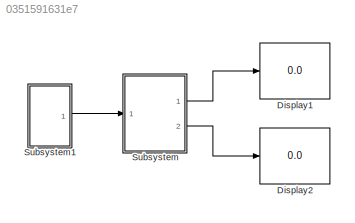
MODEL slx_0351591631e7
KIND model
CONFIG AbsTol = auto
CONFIG EnableMultiTasking = off
CONFIG FixedStep = auto
CONFIG MaxStep = auto
CONFIG MinStep = auto
CONFIG RelTol = 1e-3
CONFIG SampleTimeConstraint = Unconstrained
CONFIG Solver = VariableStepAuto
CONFIG SolverName = VariableStepAuto
CONFIG StartTime = 0.0
CONFIG StopTime = 10.0
BLOCK [Display] Display1
  Decimation = 1
  Ports = [1]
BLOCK [Display] Display2
  Decimation = 1
  Ports = [1]
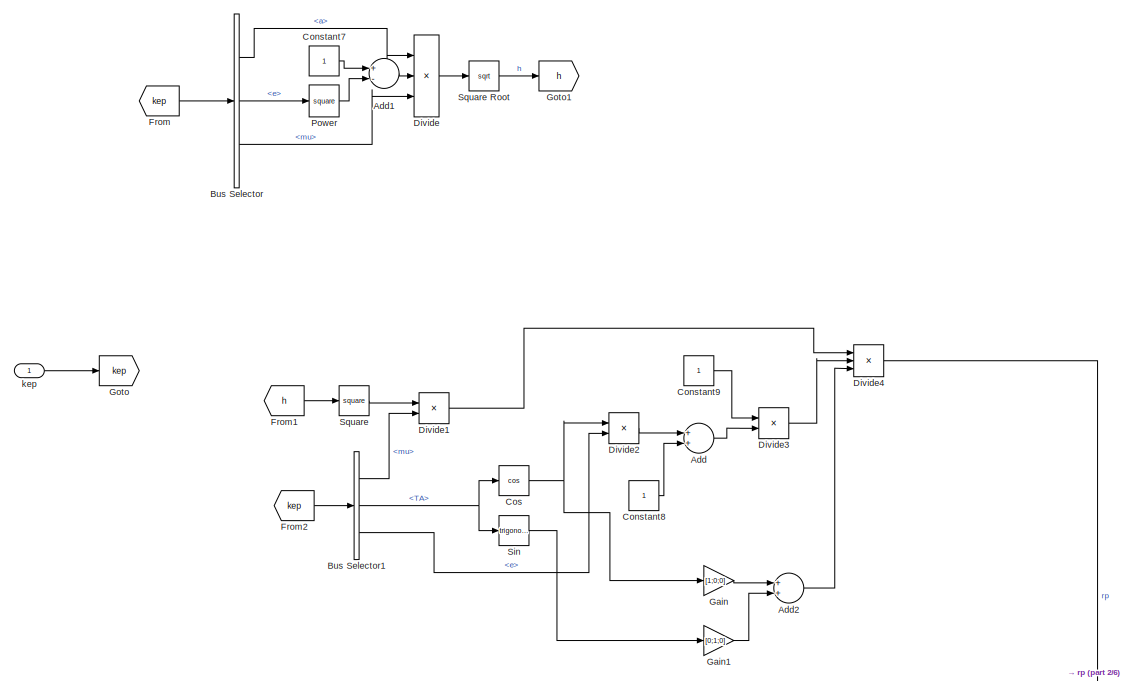
[diagram: Subsystem - part 1/6, top left region]
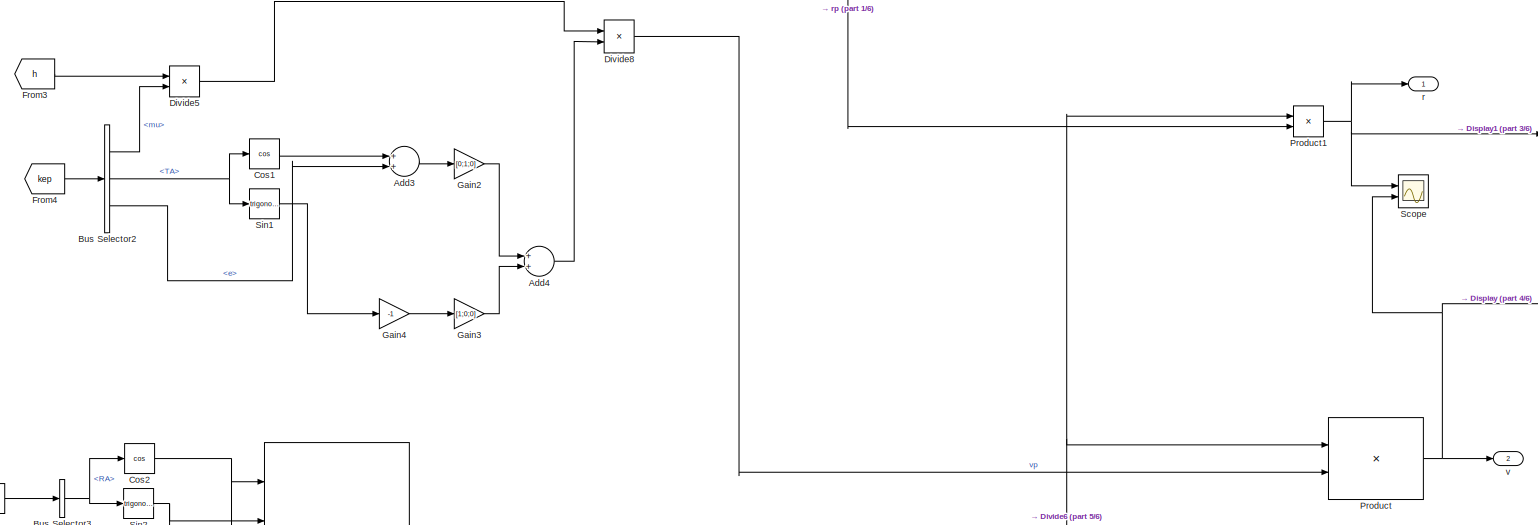
[diagram: Subsystem - part 2/6, full width, middle band]
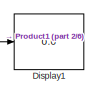
[diagram: Subsystem - part 3/6, top right region]
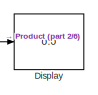
[diagram: Subsystem - part 4/6, middle right region]
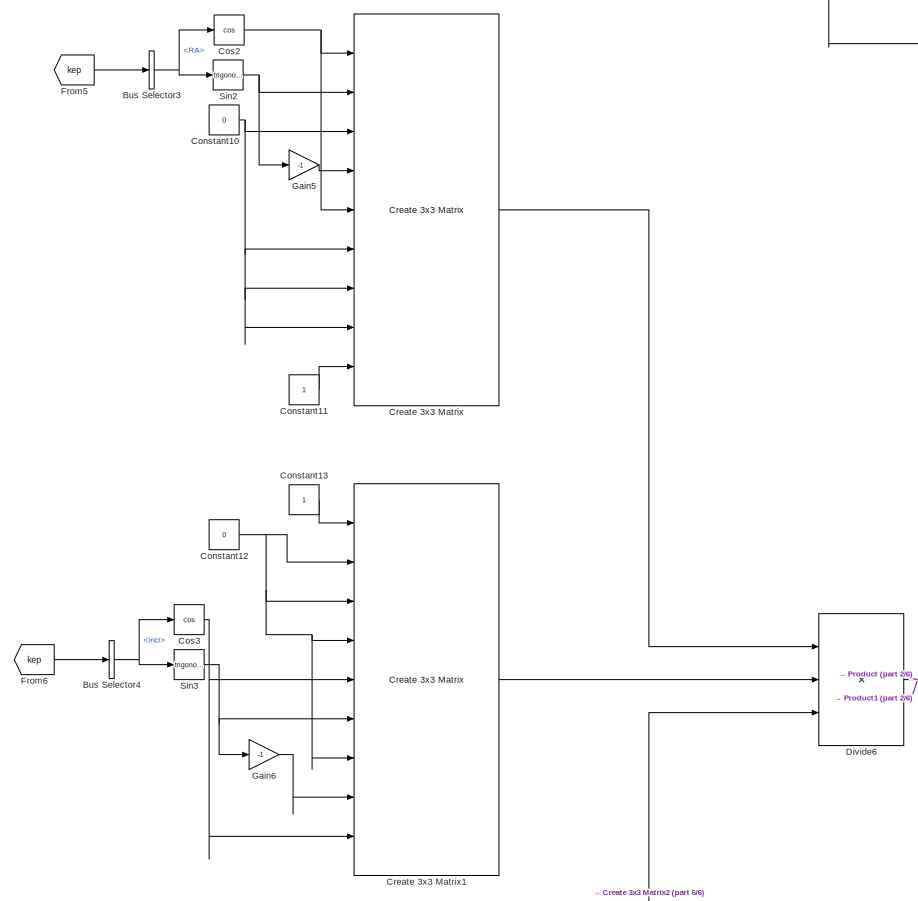
[diagram: Subsystem - part 5/6, middle left region]
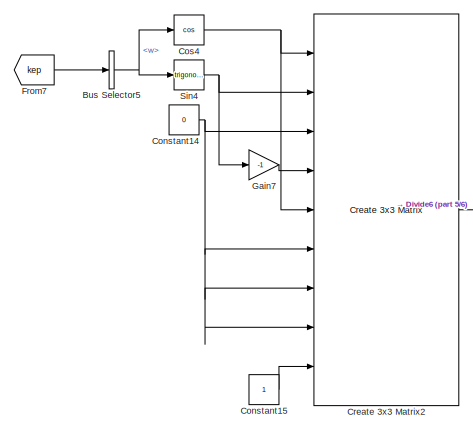
[diagram: Subsystem - part 6/6, bottom left region]
BLOCK [SubSystem] Subsystem
  Ports = [1, 2]
  RequestExecContextInheritance = off
BLOCK [Sum] Subsystem/Add
  InputSameDT = off
  OutDataTypeStr = Inherit: Inherit via internal rule
  Ports = [2, 1]
  SaturateOnIntegerOverflow = off
BLOCK [Sum] Subsystem/Add1
  InputSameDT = off
  Inputs = +-
  OutDataTypeStr = Inherit: Inherit via internal rule
  Ports = [2, 1]
  SaturateOnIntegerOverflow = off
BLOCK [Sum] Subsystem/Add2
  InputSameDT = off
  OutDataTypeStr = Inherit: Inherit via internal rule
  Ports = [2, 1]
  SaturateOnIntegerOverflow = off
BLOCK [Sum] Subsystem/Add3
  InputSameDT = off
  OutDataTypeStr = Inherit: Inherit via internal rule
  Ports = [2, 1]
  SaturateOnIntegerOverflow = off
BLOCK [Sum] Subsystem/Add4
  InputSameDT = off
  OutDataTypeStr = Inherit: Inherit via internal rule
  Ports = [2, 1]
  SaturateOnIntegerOverflow = off
BLOCK [BusSelector] Subsystem/Bus Selector
  OutputAsBus = off
  OutputSignals = a,e,mu
  Ports = [1, 3]
BLOCK [BusSelector] Subsystem/Bus Selector1
  OutputAsBus = off
  OutputSignals = mu,TA,e
  Ports = [1, 3]
BLOCK [BusSelector] Subsystem/Bus Selector2
  OutputAsBus = off
  OutputSignals = mu,TA,e
  Ports = [1, 3]
BLOCK [BusSelector] Subsystem/Bus Selector3
  OutputAsBus = off
  OutputSignals = RA
  Ports = [1, 1]
BLOCK [BusSelector] Subsystem/Bus Selector4
  OutputAsBus = off
  OutputSignals = incl
  Ports = [1, 1]
BLOCK [BusSelector] Subsystem/Bus Selector5
  OutputAsBus = off
  OutputSignals = w
  Ports = [1, 1]
BLOCK [Constant] Subsystem/Constant10
  Value = 0
BLOCK [Constant] Subsystem/Constant11
BLOCK [Constant] Subsystem/Constant12
  Value = 0
BLOCK [Constant] Subsystem/Constant13
BLOCK [Constant] Subsystem/Constant14
  Value = 0
BLOCK [Constant] Subsystem/Constant15
BLOCK [Constant] Subsystem/Constant7
BLOCK [Constant] Subsystem/Constant8
BLOCK [Constant] Subsystem/Constant9
BLOCK [Trigonometry] Subsystem/Cos
  Operator = cos
  Ports = [1, 1]
BLOCK [Trigonometry] Subsystem/Cos1
  Operator = cos
  Ports = [1, 1]
BLOCK [Trigonometry] Subsystem/Cos2
  Operator = cos
  Ports = [1, 1]
BLOCK [Trigonometry] Subsystem/Cos3
  Operator = cos
  Ports = [1, 1]
BLOCK [Trigonometry] Subsystem/Cos4
  Operator = cos
  Ports = [1, 1]
BLOCK [Reference] Subsystem/Create 3x3 Matrix  REF=sharedutil/Create 3x3 Matrix
  Ports = [9, 1]
  SourceBlock = sharedutil/Create 3x3 Matrix
  SourceProductBaseCode = AE
  SourceProductName = Aerospace Blockset
  SourceType = Create 3x3 Matrix
BLOCK [Reference] Subsystem/Create 3x3 Matrix1  REF=sharedutil/Create 3x3 Matrix
  Ports = [9, 1]
  SourceBlock = sharedutil/Create 3x3 Matrix
  SourceProductBaseCode = AE
  SourceProductName = Aerospace Blockset
  SourceType = Create 3x3 Matrix
BLOCK [Reference] Subsystem/Create 3x3 Matrix2  REF=sharedutil/Create 3x3 Matrix
  Ports = [9, 1]
  SourceBlock = sharedutil/Create 3x3 Matrix
  SourceProductBaseCode = AE
  SourceProductName = Aerospace Blockset
  SourceType = Create 3x3 Matrix
BLOCK [Display] Subsystem/Display
  Decimation = 1
  Ports = [1]
BLOCK [Display] Subsystem/Display1
  Decimation = 1
  Ports = [1]
BLOCK [Product] Subsystem/Divide
  InputSameDT = off
  Inputs = 3
  OutDataTypeStr = Inherit: Inherit via internal rule
  Ports = [3, 1]
  RndMeth = Floor
  SaturateOnIntegerOverflow = off
BLOCK [Product] Subsystem/Divide1
  InputSameDT = off
  Inputs = */
  OutDataTypeStr = Inherit: Inherit via internal rule
  Ports = [2, 1]
  RndMeth = Floor
  SaturateOnIntegerOverflow = off
BLOCK [Product] Subsystem/Divide2
  InputSameDT = off
  OutDataTypeStr = Inherit: Inherit via internal rule
  Ports = [2, 1]
  RndMeth = Floor
  SaturateOnIntegerOverflow = off
BLOCK [Product] Subsystem/Divide3
  InputSameDT = off
  Inputs = */
  OutDataTypeStr = Inherit: Inherit via internal rule
  Ports = [2, 1]
  RndMeth = Floor
  SaturateOnIntegerOverflow = off
BLOCK [Product] Subsystem/Divide4
  InputSameDT = off
  Inputs = 3
  OutDataTypeStr = Inherit: Inherit via internal rule
  Ports = [3, 1]
  RndMeth = Floor
  SaturateOnIntegerOverflow = off
BLOCK [Product] Subsystem/Divide5
  InputSameDT = off
  Inputs = /*
  OutDataTypeStr = Inherit: Inherit via internal rule
  Ports = [2, 1]
  RndMeth = Floor
  SaturateOnIntegerOverflow = off
BLOCK [Product] Subsystem/Divide6
  InputSameDT = off
  Inputs = 3
  Multiplication = Matrix(*)
  OutDataTypeStr = Inherit: Inherit via internal rule
  Ports = [3, 1]
  RndMeth = Floor
  SaturateOnIntegerOverflow = off
BLOCK [Product] Subsystem/Divide8
  InputSameDT = off
  OutDataTypeStr = Inherit: Inherit via internal rule
  Ports = [2, 1]
  RndMeth = Floor
  SaturateOnIntegerOverflow = off
BLOCK [From] Subsystem/From
  GotoTag = kep
BLOCK [From] Subsystem/From1
  GotoTag = h
BLOCK [From] Subsystem/From2
  GotoTag = kep
BLOCK [From] Subsystem/From3
  GotoTag = h
BLOCK [From] Subsystem/From4
  GotoTag = kep
BLOCK [From] Subsystem/From5
  GotoTag = kep
BLOCK [From] Subsystem/From6
  GotoTag = kep
BLOCK [From] Subsystem/From7
  GotoTag = kep
BLOCK [Gain] Subsystem/Gain
  Gain = [1;0;0]
  OutDataTypeStr = Inherit: Inherit via internal rule
  ParamDataTypeStr = Inherit: Inherit via internal rule
  SaturateOnIntegerOverflow = off
BLOCK [Gain] Subsystem/Gain1
  Gain = [0;1;0]
  OutDataTypeStr = Inherit: Inherit via internal rule
  ParamDataTypeStr = Inherit: Inherit via internal rule
  SaturateOnIntegerOverflow = off
BLOCK [Gain] Subsystem/Gain2
  Gain = [0;1;0]
  OutDataTypeStr = Inherit: Inherit via internal rule
  ParamDataTypeStr = Inherit: Inherit via internal rule
  SaturateOnIntegerOverflow = off
BLOCK [Gain] Subsystem/Gain3
  Gain = [1;0;0]
  OutDataTypeStr = Inherit: Inherit via internal rule
  ParamDataTypeStr = Inherit: Inherit via internal rule
  SaturateOnIntegerOverflow = off
BLOCK [Gain] Subsystem/Gain4
  Gain = -1
  OutDataTypeStr = Inherit: Inherit via internal rule
  ParamDataTypeStr = Inherit: Inherit via internal rule
  SaturateOnIntegerOverflow = off
BLOCK [Gain] Subsystem/Gain5
  Gain = -1
  OutDataTypeStr = Inherit: Inherit via internal rule
  ParamDataTypeStr = Inherit: Inherit via internal rule
  SaturateOnIntegerOverflow = off
BLOCK [Gain] Subsystem/Gain6
  Gain = -1
  OutDataTypeStr = Inherit: Inherit via internal rule
  ParamDataTypeStr = Inherit: Inherit via internal rule
  SaturateOnIntegerOverflow = off
BLOCK [Gain] Subsystem/Gain7
  Gain = -1
  OutDataTypeStr = Inherit: Inherit via internal rule
  ParamDataTypeStr = Inherit: Inherit via internal rule
  SaturateOnIntegerOverflow = off
BLOCK [Goto] Subsystem/Goto
  GotoTag = kep
BLOCK [Goto] Subsystem/Goto1
  GotoTag = h
BLOCK [Math] Subsystem/Power
  Operator = square
  Ports = [1, 1]
  SignedPower = off
BLOCK [Product] Subsystem/Product
  InputSameDT = off
  Multiplication = Matrix(*)
  OutDataTypeStr = Inherit: Inherit via internal rule
  Ports = [2, 1]
  RndMeth = Floor
  SaturateOnIntegerOverflow = off
BLOCK [Product] Subsystem/Product1
  InputSameDT = off
  Multiplication = Matrix(*)
  OutDataTypeStr = Inherit: Inherit via internal rule
  Ports = [2, 1]
  RndMeth = Floor
  SaturateOnIntegerOverflow = off
BLOCK [Scope] Subsystem/Scope
  Floating = off
  NumInputPorts = 2
  Ports = [2]
  ScopeSpecificationString = Simulink.scopes.TimeScopeBlockCfg('CurrentConfiguration', extmgr.ConfigurationSet(extmgr.Configuration('Core','General UI',true),extmgr.Configuration('Core','Source UI',true),extmgr.Configuration('Sources','WiredSimulink',true),extmgr.Configuration('Visuals','Time Domain',true,'SerializedDisplays',{struct('MinYLimReal','-837500.00000','MaxYLimReal','7537500.00000','YLabelReal','','MinYLimMag','   ...<+2315ch>
BLOCK [Trigonometry] Subsystem/Sin
  Ports = [1, 1]
BLOCK [Trigonometry] Subsystem/Sin1
  Ports = [1, 1]
BLOCK [Trigonometry] Subsystem/Sin2
  Ports = [1, 1]
BLOCK [Trigonometry] Subsystem/Sin3
  Ports = [1, 1]
BLOCK [Trigonometry] Subsystem/Sin4
  Ports = [1, 1]
BLOCK [Math] Subsystem/Square
  Operator = square
  Ports = [1, 1]
  SignedPower = off
BLOCK [Sqrt] Subsystem/Square Root
BLOCK [Inport] Subsystem/kep
  IconDisplay = Port number
BLOCK [Outport] Subsystem/r
  IconDisplay = Port number
BLOCK [Outport] Subsystem/v
  IconDisplay = Port number
  Port = 2
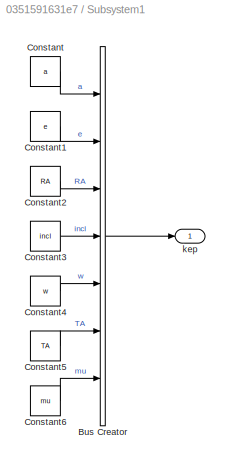
BLOCK [SubSystem] Subsystem1
  Ports = [0, 1]
  RequestExecContextInheritance = off
BLOCK [BusCreator] Subsystem1/Bus Creator
  DisplayOption = bar
  InheritFromInputs = on
  Inputs = 7
  Ports = [7, 1]
BLOCK [Constant] Subsystem1/Constant
  Value = a
BLOCK [Constant] Subsystem1/Constant1
  Value = e
BLOCK [Constant] Subsystem1/Constant2
  Value = RA
BLOCK [Constant] Subsystem1/Constant3
  Value = incl
BLOCK [Constant] Subsystem1/Constant4
  Value = w
BLOCK [Constant] Subsystem1/Constant5
  Value = TA
BLOCK [Constant] Subsystem1/Constant6
  Value = mu
BLOCK [Outport] Subsystem1/kep
  IconDisplay = Port number
LINE Subsystem/Add1:1 -> Subsystem/Divide:2
LINE Subsystem/Add2:1 -> Subsystem/Divide4:3
LINE Subsystem/Add3:1 -> Subsystem/Gain2:1
LINE Subsystem/Add4:1 -> Subsystem/Divide8:2
LINE Subsystem/Add:1 -> Subsystem/Divide3:2
LINE Subsystem/Bus Selector1:1 -> Subsystem/Divide1:2
NET Subsystem/Bus Selector1:2 -> Subsystem/Cos:1, Subsystem/Sin:1
LINE Subsystem/Bus Selector1:3 -> Subsystem/Divide2:2
LINE Subsystem/Bus Selector2:1 -> Subsystem/Divide5:2
NET Subsystem/Bus Selector2:2 -> Subsystem/Cos1:1, Subsystem/Sin1:1
LINE Subsystem/Bus Selector2:3 -> Subsystem/Add3:2
NET Subsystem/Bus Selector3:1 -> Subsystem/Cos2:1, Subsystem/Sin2:1
NET Subsystem/Bus Selector4:1 -> Subsystem/Cos3:1, Subsystem/Sin3:1
NET Subsystem/Bus Selector5:1 -> Subsystem/Cos4:1, Subsystem/Sin4:1
LINE Subsystem/Bus Selector:1 -> Subsystem/Divide:1
LINE Subsystem/Bus Selector:2 -> Subsystem/Power:1
LINE Subsystem/Bus Selector:3 -> Subsystem/Divide:3
NET Subsystem/Constant10:1 -> Subsystem/Create 3x3 Matrix:3, Subsystem/Create 3x3 Matrix:6, Subsystem/Create 3x3 Matrix:7, Subsystem/Create 3x3 Matrix:8
LINE Subsystem/Constant11:1 -> Subsystem/Create 3x3 Matrix:9
NET Subsystem/Constant12:1 -> Subsystem/Create 3x3 Matrix1:2, Subsystem/Create 3x3 Matrix1:3, Subsystem/Create 3x3 Matrix1:4, Subsystem/Create 3x3 Matrix1:7
LINE Subsystem/Constant13:1 -> Subsystem/Create 3x3 Matrix1:1
NET Subsystem/Constant14:1 -> Subsystem/Create 3x3 Matrix2:3, Subsystem/Create 3x3 Matrix2:6, Subsystem/Create 3x3 Matrix2:7, Subsystem/Create 3x3 Matrix2:8
LINE Subsystem/Constant15:1 -> Subsystem/Create 3x3 Matrix2:9
LINE Subsystem/Constant7:1 -> Subsystem/Add1:1
LINE Subsystem/Constant8:1 -> Subsystem/Add:2
LINE Subsystem/Constant9:1 -> Subsystem/Divide3:1
LINE Subsystem/Cos1:1 -> Subsystem/Add3:1
NET Subsystem/Cos2:1 -> Subsystem/Create 3x3 Matrix:1, Subsystem/Create 3x3 Matrix:5
NET Subsystem/Cos3:1 -> Subsystem/Create 3x3 Matrix1:5, Subsystem/Create 3x3 Matrix1:9
NET Subsystem/Cos4:1 -> Subsystem/Create 3x3 Matrix2:1, Subsystem/Create 3x3 Matrix2:5
NET Subsystem/Cos:1 -> Subsystem/Divide2:1, Subsystem/Gain:1
LINE Subsystem/Create 3x3 Matrix1:1 -> Subsystem/Divide6:2
LINE Subsystem/Create 3x3 Matrix2:1 -> Subsystem/Divide6:3
LINE Subsystem/Create 3x3 Matrix:1 -> Subsystem/Divide6:1
LINE Subsystem/Divide1:1 -> Subsystem/Divide4:1
LINE Subsystem/Divide2:1 -> Subsystem/Add:1
LINE Subsystem/Divide3:1 -> Subsystem/Divide4:2
LINE Subsystem/Divide4:1 -> Subsystem/Product1:2
LINE Subsystem/Divide5:1 -> Subsystem/Divide8:1
NET Subsystem/Divide6:1 -> Subsystem/Product1:1, Subsystem/Product:1
LINE Subsystem/Divide8:1 -> Subsystem/Product:2
LINE Subsystem/Divide:1 -> Subsystem/Square Root:1
LINE Subsystem/From1:1 -> Subsystem/Square:1
LINE Subsystem/From2:1 -> Subsystem/Bus Selector1:1
LINE Subsystem/From3:1 -> Subsystem/Divide5:1
LINE Subsystem/From4:1 -> Subsystem/Bus Selector2:1
LINE Subsystem/From5:1 -> Subsystem/Bus Selector3:1
LINE Subsystem/From6:1 -> Subsystem/Bus Selector4:1
LINE Subsystem/From7:1 -> Subsystem/Bus Selector5:1
LINE Subsystem/From:1 -> Subsystem/Bus Selector:1
LINE Subsystem/Gain1:1 -> Subsystem/Add2:2
LINE Subsystem/Gain2:1 -> Subsystem/Add4:1
LINE Subsystem/Gain3:1 -> Subsystem/Add4:2
LINE Subsystem/Gain4:1 -> Subsystem/Gain3:1
LINE Subsystem/Gain5:1 -> Subsystem/Create 3x3 Matrix:4
LINE Subsystem/Gain6:1 -> Subsystem/Create 3x3 Matrix1:8
LINE Subsystem/Gain7:1 -> Subsystem/Create 3x3 Matrix2:4
LINE Subsystem/Gain:1 -> Subsystem/Add2:1
LINE Subsystem/Power:1 -> Subsystem/Add1:2
NET Subsystem/Product1:1 -> Subsystem/Display1:1, Subsystem/Scope:1, Subsystem/r:1
NET Subsystem/Product:1 -> Subsystem/Display:1, Subsystem/Scope:2, Subsystem/v:1
LINE Subsystem/Sin1:1 -> Subsystem/Gain4:1
NET Subsystem/Sin2:1 -> Subsystem/Create 3x3 Matrix:2, Subsystem/Gain5:1
NET Subsystem/Sin3:1 -> Subsystem/Create 3x3 Matrix1:6, Subsystem/Gain6:1
NET Subsystem/Sin4:1 -> Subsystem/Create 3x3 Matrix2:2, Subsystem/Gain7:1
LINE Subsystem/Sin:1 -> Subsystem/Gain1:1
LINE Subsystem/Square Root:1 -> Subsystem/Goto1:1
LINE Subsystem/Square:1 -> Subsystem/Divide1:1
LINE Subsystem/kep:1 -> Subsystem/Goto:1
LINE Subsystem1/Bus Creator:1 -> Subsystem1/kep:1
LINE Subsystem1/Constant1:1 -> Subsystem1/Bus Creator:2
LINE Subsystem1/Constant2:1 -> Subsystem1/Bus Creator:3
LINE Subsystem1/Constant3:1 -> Subsystem1/Bus Creator:4
LINE Subsystem1/Constant4:1 -> Subsystem1/Bus Creator:5
LINE Subsystem1/Constant5:1 -> Subsystem1/Bus Creator:6
LINE Subsystem1/Constant6:1 -> Subsystem1/Bus Creator:7
LINE Subsystem1/Constant:1 -> Subsystem1/Bus Creator:1
LINE Subsystem1:1 -> Subsystem:1
LINE Subsystem:1 -> Display1:1
LINE Subsystem:2 -> Display2:1
note: NET lines group one-source signal fan-out (src -> all destinations, sorted); 1:1 wires keep LINE
